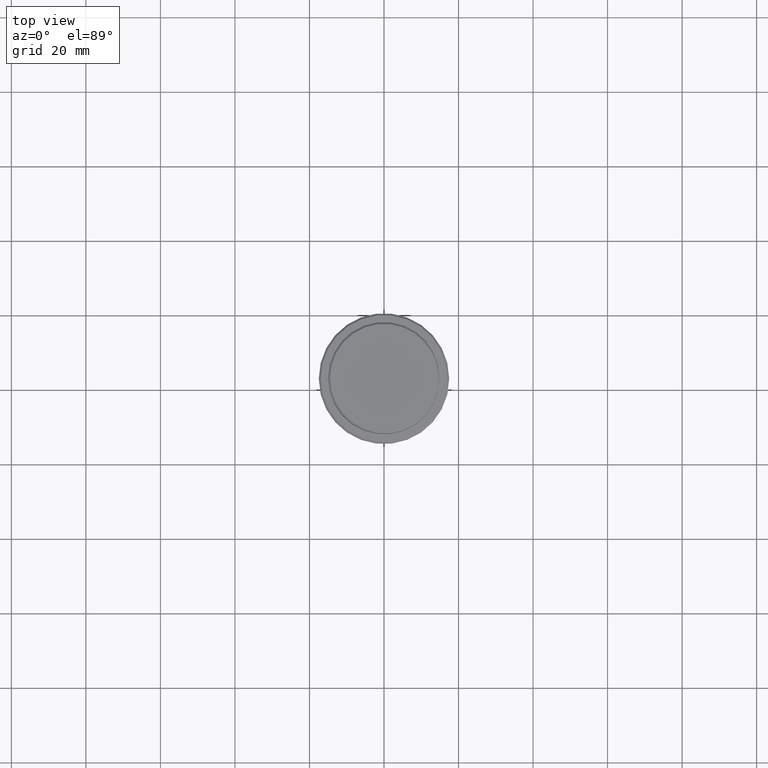
[diagram: clean part render]
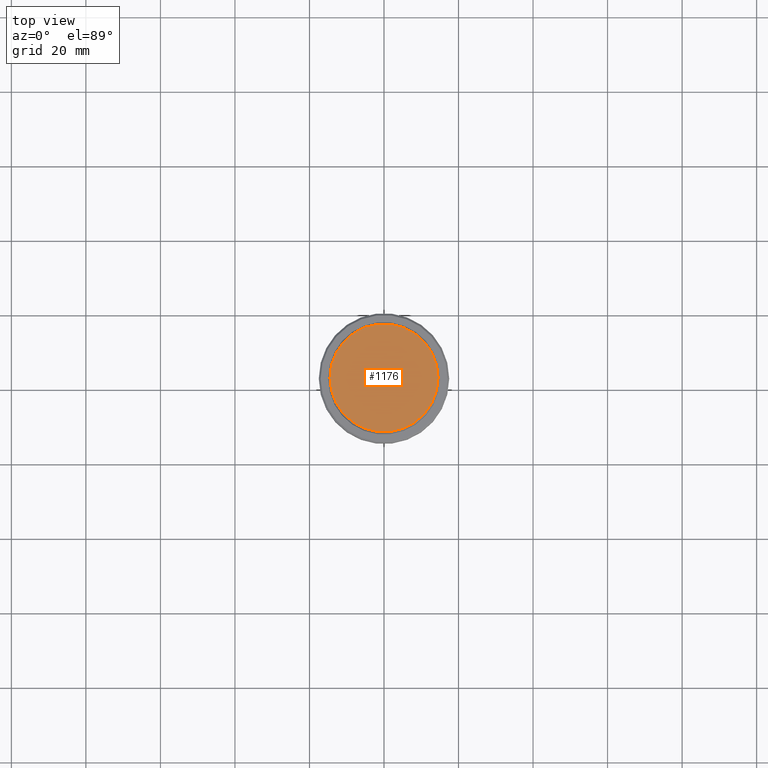
[diagram: same view with one face highlighted and labeled with its STEP entity id]
A machine part, top view. The second image highlights one B-rep face of the part: STEP entity #1176.
In plain terms, the highlighted planar face has unit normal (0, -0, 1).
Its self-contained STEP definition (entity closure, byte-faithful):
#35 = CARTESIAN_POINT ( 'NONE',  ( 0.000000000000000000, 0.000000000000000000, 0.000000000000000000 ) ) ;
#40 = ORIENTED_EDGE ( 'NONE', *, *, #1314, .T. ) ;
#80 = FACE_OUTER_BOUND ( 'NONE', #1281, .T. ) ;
#109 = CIRCLE ( 'NONE', #1150, 14.50000000000003908 ) ;
#111 = AXIS2_PLACEMENT_3D ( 'NONE', #35, #494, #590 ) ;
#134 = ORIENTED_EDGE ( 'NONE', *, *, #944, .T. ) ;
#156 = CIRCLE ( 'NONE', #111, 14.50000000000003908 ) ;
#278 = AXIS2_PLACEMENT_3D ( 'NONE', #980, #529, #871 ) ;
#286 = DIRECTION ( 'NONE',  ( -0.000000000000000000, -0.000000000000000000, 1.000000000000000000 ) ) ;
#415 = CARTESIAN_POINT ( 'NONE',  ( 0.000000000000000000, 0.000000000000000000, 0.000000000000000000 ) ) ;
#494 = DIRECTION ( 'NONE',  ( -0.000000000000000000, -0.000000000000000000, 1.000000000000000000 ) ) ;
#529 = DIRECTION ( 'NONE',  ( 0.000000000000000000, -0.000000000000000000, 1.000000000000000000 ) ) ;
#590 = DIRECTION ( 'NONE',  ( 1.000000000000000000, 0.000000000000000000, 0.000000000000000000 ) ) ;
#668 = VERTEX_POINT ( 'NONE', #1068 ) ;
#871 = DIRECTION ( 'NONE',  ( 1.000000000000000000, 0.000000000000000000, 0.000000000000000000 ) ) ;
#935 = DIRECTION ( 'NONE',  ( 1.000000000000000000, 0.000000000000000000, 0.000000000000000000 ) ) ;
#944 = EDGE_CURVE ( 'NONE', #1002, #668, #109, .T. ) ;
#980 = CARTESIAN_POINT ( 'NONE',  ( 0.000000000000000000, 0.000000000000000000, 0.000000000000000000 ) ) ;
#1002 = VERTEX_POINT ( 'NONE', #1040 ) ;
#1040 = CARTESIAN_POINT ( 'NONE',  ( -14.50000000000003908, 0.000000000000000000, 0.000000000000000000 ) ) ;
#1068 = CARTESIAN_POINT ( 'NONE',  ( 14.50000000000003908, 1.806354028742348168E-15, 0.000000000000000000 ) ) ;
#1081 = PLANE ( 'NONE',  #278 ) ;
#1150 = AXIS2_PLACEMENT_3D ( 'NONE', #415, #286, #935 ) ;
#1176 = ADVANCED_FACE ( 'NONE', ( #80 ), #1081, .T. ) ;
#1281 = EDGE_LOOP ( 'NONE', ( #134, #40 ) ) ;
#1314 = EDGE_CURVE ( 'NONE', #668, #1002, #156, .T. ) ;